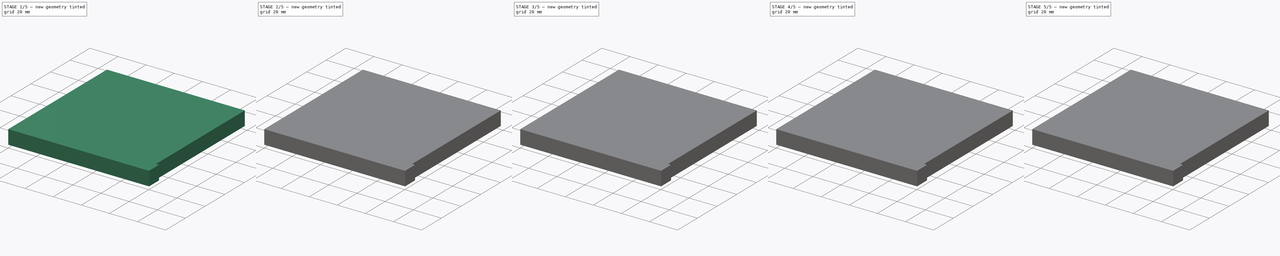
[diagram: build sequence overview — one tinted view per stage of 5, left to right]
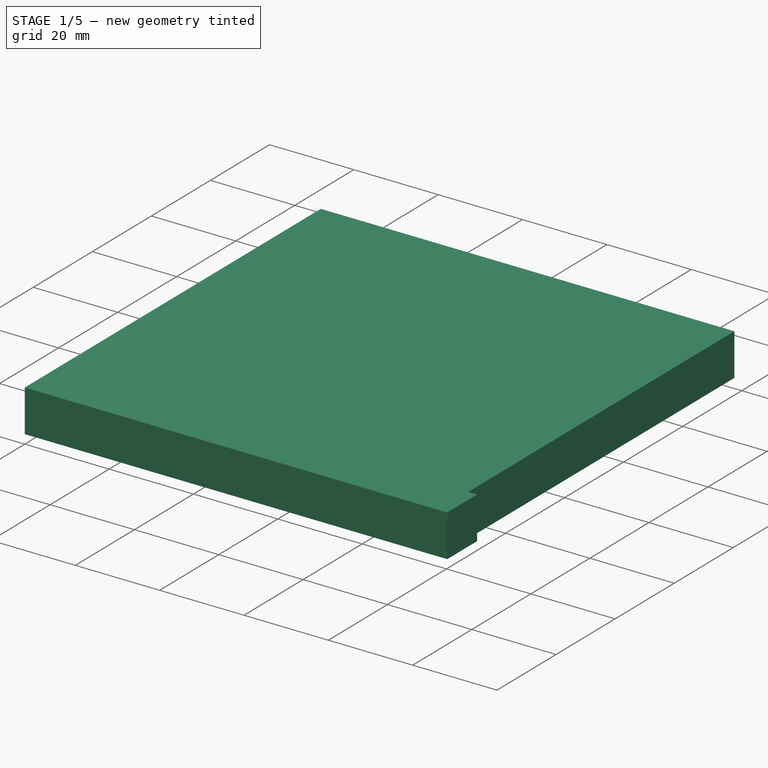
[diagram: stage 1 of 5 — iso view after this stage's code; geometry added in this stage tinted green]
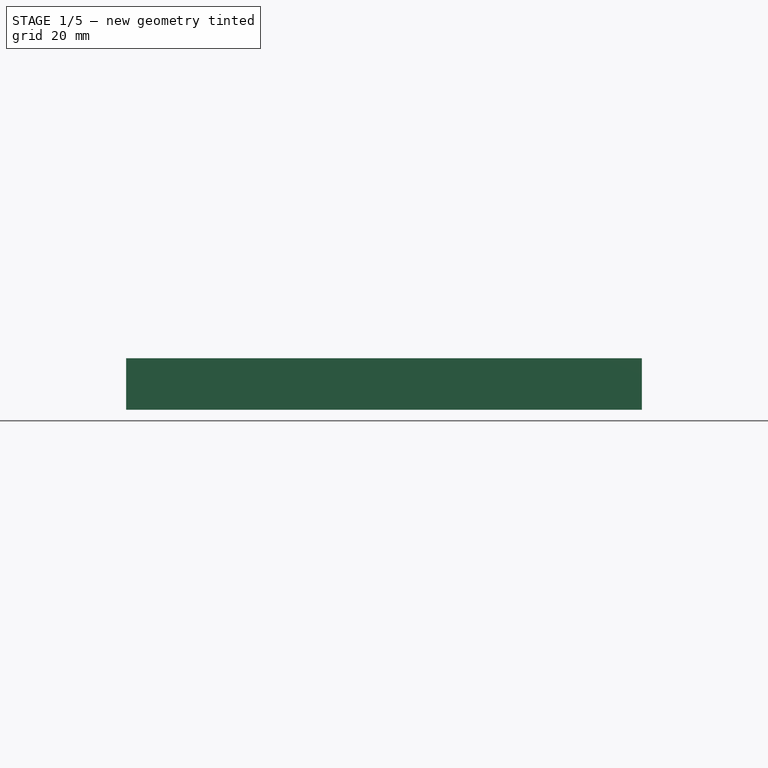
[diagram: stage 1 of 5 — front view after this stage's code; geometry added in this stage tinted green]
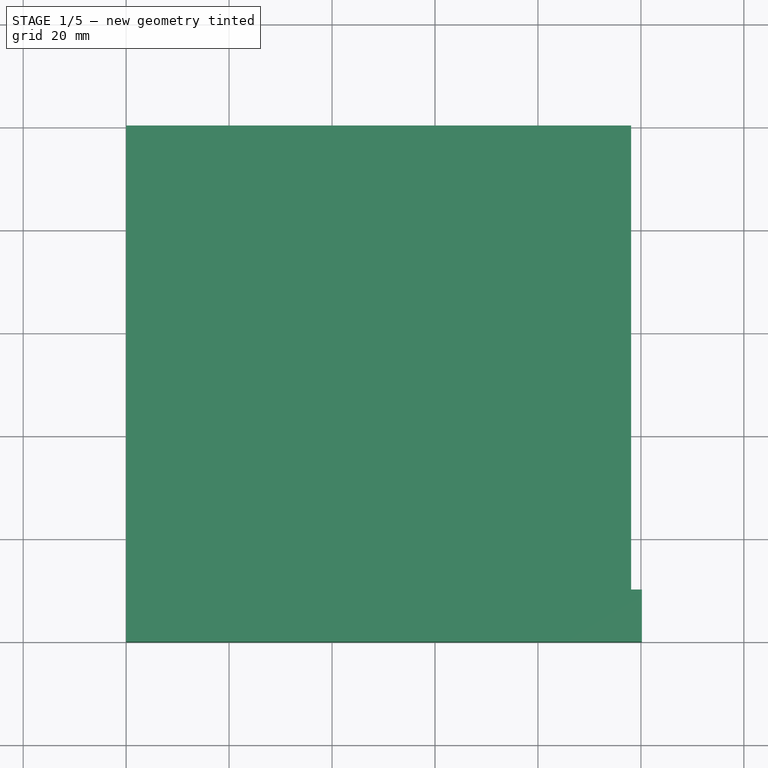
[diagram: stage 1 of 5 — top view after this stage's code; geometry added in this stage tinted green]
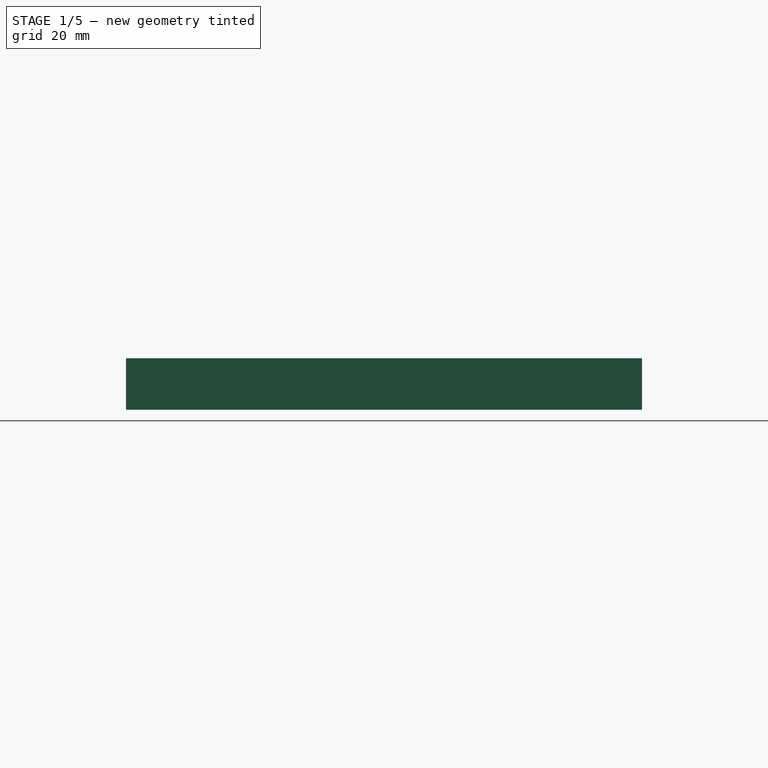
[diagram: stage 1 of 5 — right view after this stage's code; geometry added in this stage tinted green]
FCSTD DOCUMENT  (FreeCAD 0.19R)
Label: Model 00
License: All rights reserved
LicenseURL: http://en.wikipedia.org/wiki/All_rights_reserved
objects: Sketcher::SketchObject×15, PartDesign::Pad×15, PartDesign::Body×15
note: 60 computed .brp shape members not serialized (recipe doc carries the construction recipe); baked Part::Feature solids carry a one-line shape summary decoded from their .brp

FEATURE [PartDesign::Body] Body011
  Group = -> [Sketch011,Pad011]
  Origin = -> Origin011
  Placement = pos=(-54.7665,-44.7011,0) rot=(0,0,1;0rad)
  Tip = -> Pad011
FEATURE [Sketcher::SketchObject] Sketch012
  FullyConstrained = false
  MapMode = 5
  Support = -> [XY_Plane012]
  sketch-geometry (4):
    g0: LineSegment StartX=0 StartY=0 StartZ=0 EndX=29.9606 EndY=0 EndZ=0
    g1: LineSegment StartX=29.9606 StartY=0 StartZ=0 EndX=29.9606 EndY=30.0272 EndZ=0
    g2: LineSegment StartX=29.9606 StartY=30.0272 StartZ=0 EndX=0 EndY=30.0272 EndZ=0
    g3: LineSegment StartX=0 StartY=30.0272 StartZ=0 EndX=0 EndY=0 EndZ=0
  constraints (9):
    c: Coincident(g0,g1)
    c: Coincident(g1,g2)
    c: Coincident(g2,g3)
    c: Coincident(g3,g0)
    c: Horizontal(g0)
    c: Horizontal(g2)
    c: Vertical(g1)
    c: Vertical(g3)
    c: Coincident(g0,g-1)
FEATURE [PartDesign::Pad] Pad012
  Direction = (1,1,1)
  Length = 10
  Length2 = 100
  Profile = -> Sketch012
  Type = 0
FEATURE [PartDesign::Body] Body012
  Group = -> [Sketch012,Pad012]
  Origin = -> Origin012
  Placement = pos=(-29.9606,-30.0272,0) rot=(0,0,1;0rad)
  Tip = -> Pad012
FEATURE [Sketcher::SketchObject] Sketch013
  FullyConstrained = false
  MapMode = 5
  Support = -> [XY_Plane013]
  sketch-geometry (4):
    g0: LineSegment StartX=0 StartY=0 StartZ=0 EndX=100.186 EndY=0 EndZ=0
    g1: LineSegment StartX=100.186 StartY=0 StartZ=0 EndX=100.186 EndY=10.1126 EndZ=0
    g2: LineSegment StartX=100.186 StartY=10.1126 StartZ=0 EndX=0 EndY=10.1126 EndZ=0
    g3: LineSegment StartX=0 StartY=10.1126 StartZ=0 EndX=0 EndY=0 EndZ=0
  constraints (9):
    c: Coincident(g0,g1)
    c: Coincident(g1,g2)
    c: Coincident(g2,g3)
    c: Coincident(g3,g0)
    c: Horizontal(g0)
    c: Horizontal(g2)
    c: Vertical(g1)
    c: Vertical(g3)
    c: Coincident(g0,g-1)
FEATURE [PartDesign::Pad] Pad013
  Direction = (1,1,1)
  Length = 10
  Length2 = 100
  Profile = -> Sketch013
  Type = 0
FEATURE [PartDesign::Body] Body013
  Group = -> [Sketch013,Pad013]
  Origin = -> Origin013
  Placement = pos=(-100.186,-10.1126,0) rot=(0,0,1;0rad)
  Tip = -> Pad013
FEATURE [Sketcher::SketchObject] Sketch014
  FullyConstrained = false
  MapMode = 5
  Support = -> [XY_Plane014]
  sketch-geometry (4):
    g0: LineSegment StartX=0 StartY=0 StartZ=0 EndX=98.0894 EndY=0 EndZ=0
    g1: LineSegment StartX=98.0894 StartY=0 StartZ=0 EndX=98.0894 EndY=100.252 EndZ=0
    g2: LineSegment StartX=98.0894 StartY=100.252 StartZ=0 EndX=0 EndY=100.252 EndZ=0
    g3: LineSegment StartX=0 StartY=100.252 StartZ=0 EndX=0 EndY=0 EndZ=0
  constraints (9):
    c: Coincident(g0,g1)
    c: Coincident(g1,g2)
    c: Coincident(g2,g3)
    c: Coincident(g3,g0)
    c: Horizontal(g0)
    c: Horizontal(g2)
    c: Vertical(g1)
    c: Vertical(g3)
    c: Coincident(g0,g-1)
FEATURE [PartDesign::Pad] Pad014
  Direction = (1,1,1)
  Length = 10
  Length2 = 100
  Profile = -> Sketch014
  Type = 0
FEATURE [PartDesign::Body] Body014
  Group = -> [Sketch014,Pad014]
  Origin = -> Origin014
  Placement = pos=(-98.0894,-100.252,0) rot=(0,0,1;0rad)
  Tip = -> Pad014
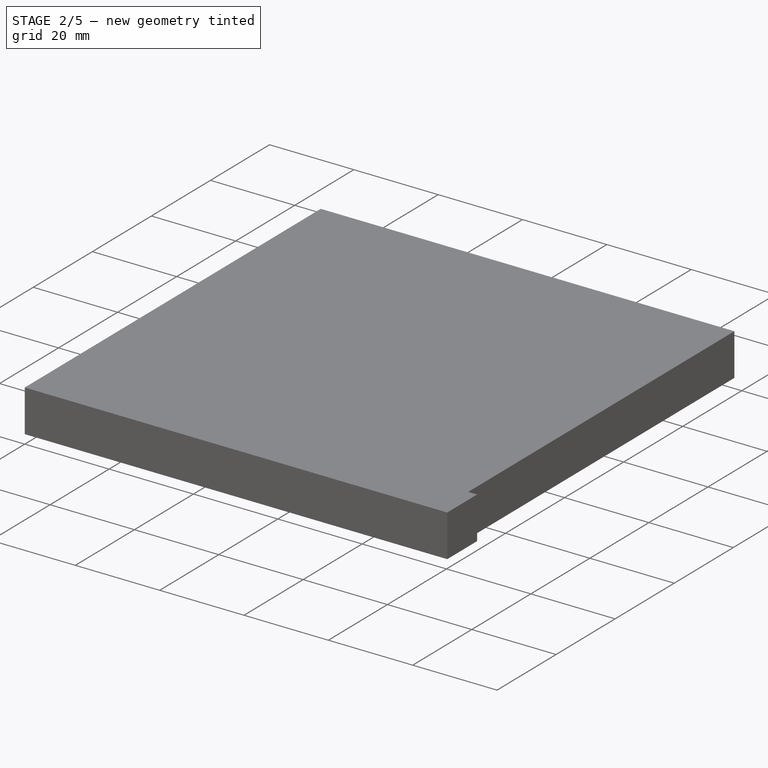
[diagram: stage 2 of 5 — iso view after this stage's code; geometry added in this stage tinted green]
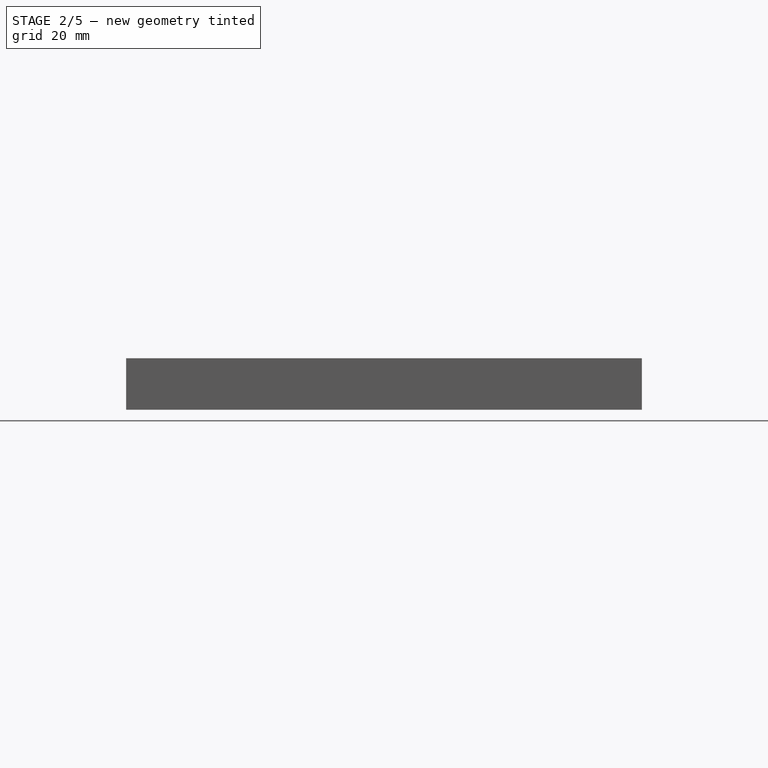
[diagram: stage 2 of 5 — front view after this stage's code; geometry added in this stage tinted green]
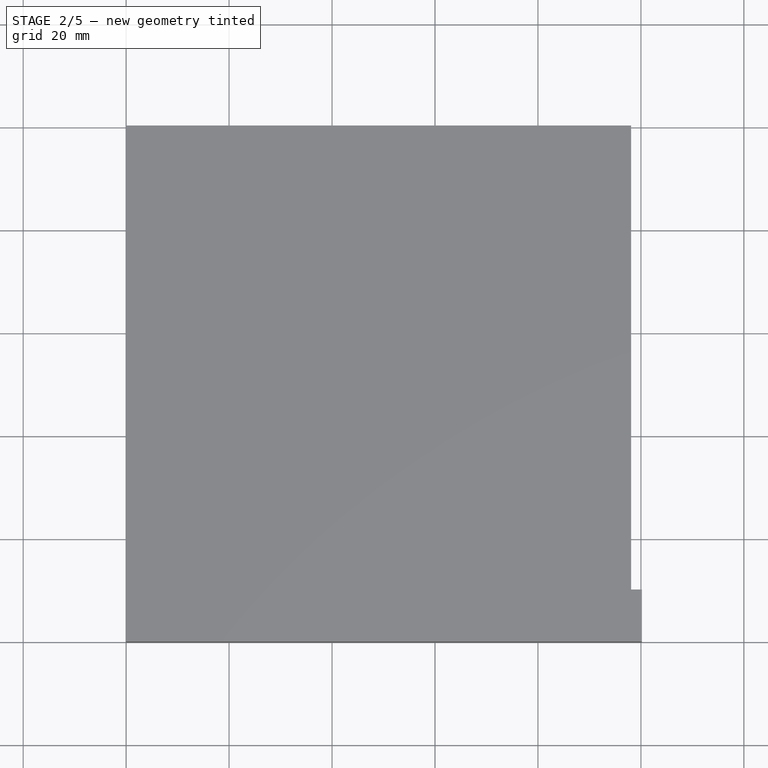
[diagram: stage 2 of 5 — top view after this stage's code; geometry added in this stage tinted green]
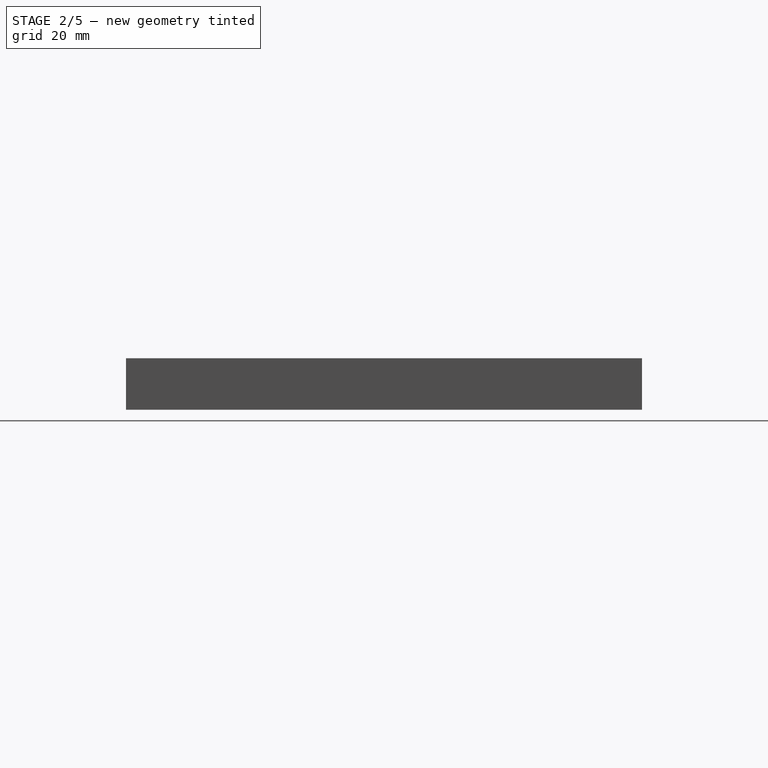
[diagram: stage 2 of 5 — right view after this stage's code; geometry added in this stage tinted green]
FEATURE [PartDesign::Body] Body008
  Group = -> [Sketch008,Pad008]
  Origin = -> Origin008
  Placement = pos=(-50.9233,-49.5924,0) rot=(0,0,1;0rad)
  Tip = -> Pad008
FEATURE [Sketcher::SketchObject] Sketch009
  FullyConstrained = false
  MapMode = 5
  Support = -> [XY_Plane009]
  sketch-geometry (4):
    g0: LineSegment StartX=0 StartY=0 StartZ=0 EndX=29.9606 EndY=0 EndZ=0
    g1: LineSegment StartX=29.9606 StartY=0 StartZ=0 EndX=29.9606 EndY=30.0272 EndZ=0
    g2: LineSegment StartX=29.9606 StartY=30.0272 StartZ=0 EndX=0 EndY=30.0272 EndZ=0
    g3: LineSegment StartX=0 StartY=30.0272 StartZ=0 EndX=0 EndY=0 EndZ=0
  constraints (9):
    c: Coincident(g0,g1)
    c: Coincident(g1,g2)
    c: Coincident(g2,g3)
    c: Coincident(g3,g0)
    c: Horizontal(g0)
    c: Horizontal(g2)
    c: Vertical(g1)
    c: Vertical(g3)
    c: Coincident(g0,g-1)
FEATURE [PartDesign::Pad] Pad009
  Direction = (1,1,1)
  Length = 10
  Length2 = 100
  Profile = -> Sketch009
  Type = 0
FEATURE [PartDesign::Body] Body009
  Group = -> [Sketch009,Pad009]
  Origin = -> Origin009
  Placement = pos=(-29.9606,-30.0272,0) rot=(0,0,1;0rad)
  Tip = -> Pad009
FEATURE [Sketcher::SketchObject] Sketch010
  FullyConstrained = false
  MapMode = 5
  Support = -> [XY_Plane010]
  sketch-geometry (4):
    g0: LineSegment StartX=0 StartY=0 StartZ=0 EndX=49.8752 EndY=0 EndZ=0
    g1: LineSegment StartX=49.8752 StartY=0 StartZ=0 EndX=49.8752 EndY=40.1592 EndZ=0
    g2: LineSegment StartX=49.8752 StartY=40.1592 StartZ=0 EndX=0 EndY=40.1592 EndZ=0
    g3: LineSegment StartX=0 StartY=40.1592 StartZ=0 EndX=0 EndY=0 EndZ=0
  constraints (9):
    c: Coincident(g0,g1)
    c: Coincident(g1,g2)
    c: Coincident(g2,g3)
    c: Coincident(g3,g0)
    c: Horizontal(g0)
    c: Horizontal(g2)
    c: Vertical(g1)
    c: Vertical(g3)
    c: Coincident(g0,g-1)
FEATURE [PartDesign::Pad] Pad010
  Direction = (1,1,1)
  Length = 10
  Length2 = 100
  Profile = -> Sketch010
  Type = 0
FEATURE [PartDesign::Body] Body010
  Group = -> [Sketch010,Pad010]
  Origin = -> Origin010
  Placement = pos=(-49.8752,-40.1592,0) rot=(0,0,1;0rad)
  Tip = -> Pad010
FEATURE [Sketcher::SketchObject] Sketch011
  FullyConstrained = false
  MapMode = 5
  Support = -> [XY_Plane011]
  sketch-geometry (4):
    g0: LineSegment StartX=0 StartY=0 StartZ=0 EndX=54.7665 EndY=0 EndZ=0
    g1: LineSegment StartX=54.7665 StartY=0 StartZ=0 EndX=54.7665 EndY=44.7011 EndZ=0
    g2: LineSegment StartX=54.7665 StartY=44.7011 StartZ=0 EndX=0 EndY=44.7011 EndZ=0
    g3: LineSegment StartX=0 StartY=44.7011 StartZ=0 EndX=0 EndY=0 EndZ=0
  constraints (9):
    c: Coincident(g0,g1)
    c: Coincident(g1,g2)
    c: Coincident(g2,g3)
    c: Coincident(g3,g0)
    c: Horizontal(g0)
    c: Horizontal(g2)
    c: Vertical(g1)
    c: Vertical(g3)
    c: Coincident(g0,g-1)
FEATURE [PartDesign::Pad] Pad011
  Direction = (1,1,1)
  Length = 10
  Length2 = 100
  Profile = -> Sketch011
  Type = 0
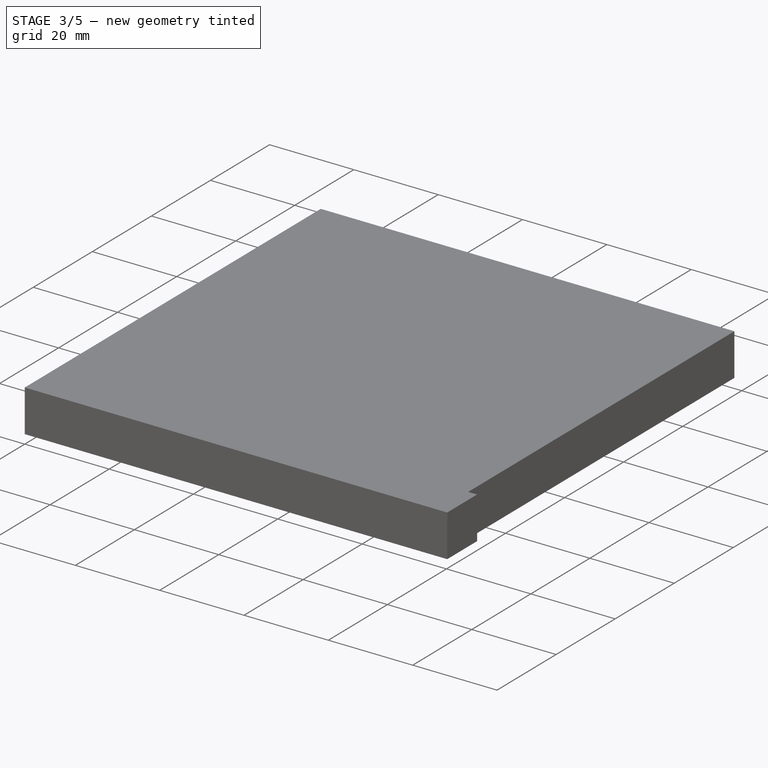
[diagram: stage 3 of 5 — iso view after this stage's code; geometry added in this stage tinted green]
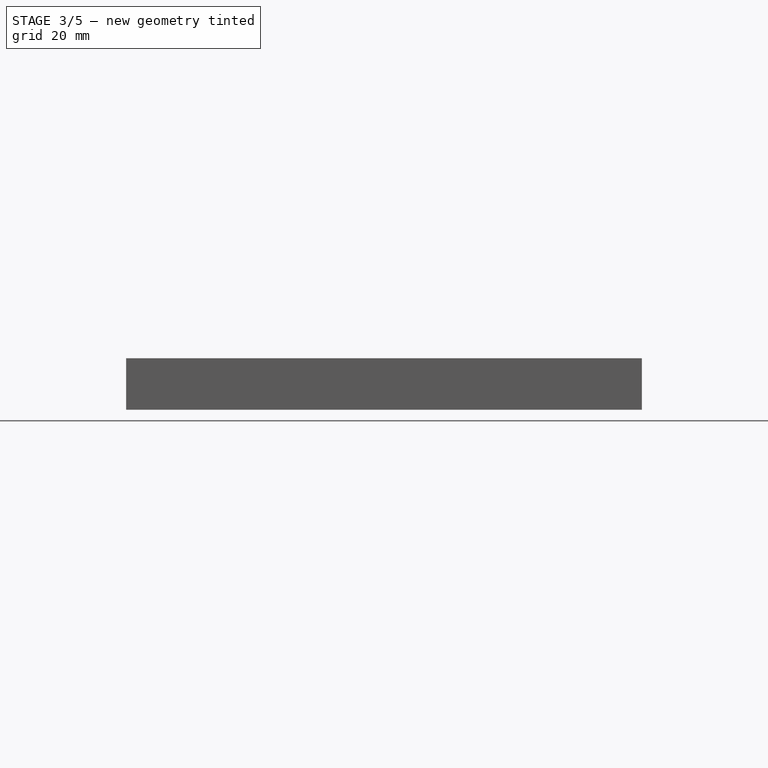
[diagram: stage 3 of 5 — front view after this stage's code; geometry added in this stage tinted green]
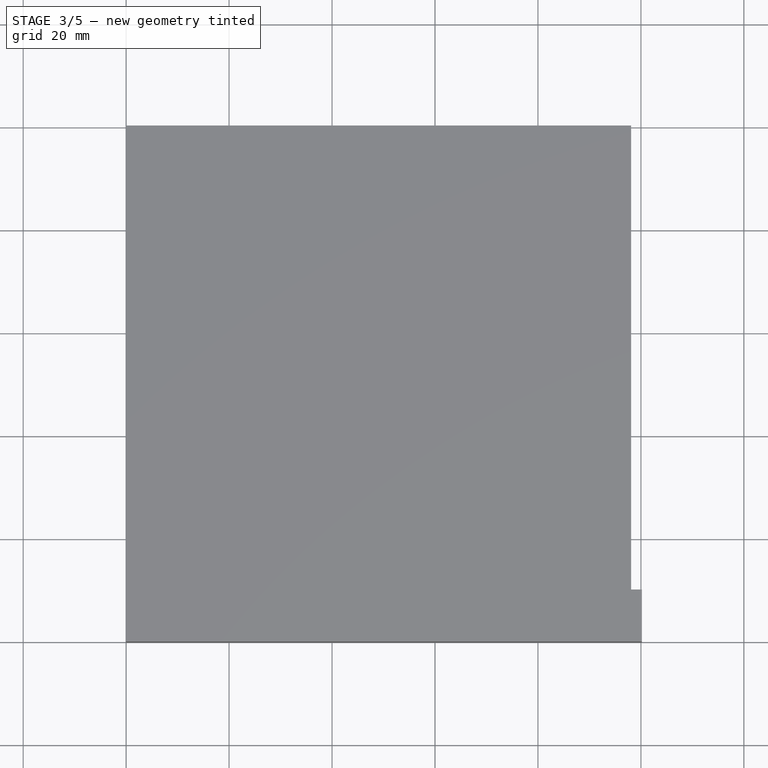
[diagram: stage 3 of 5 — top view after this stage's code; geometry added in this stage tinted green]
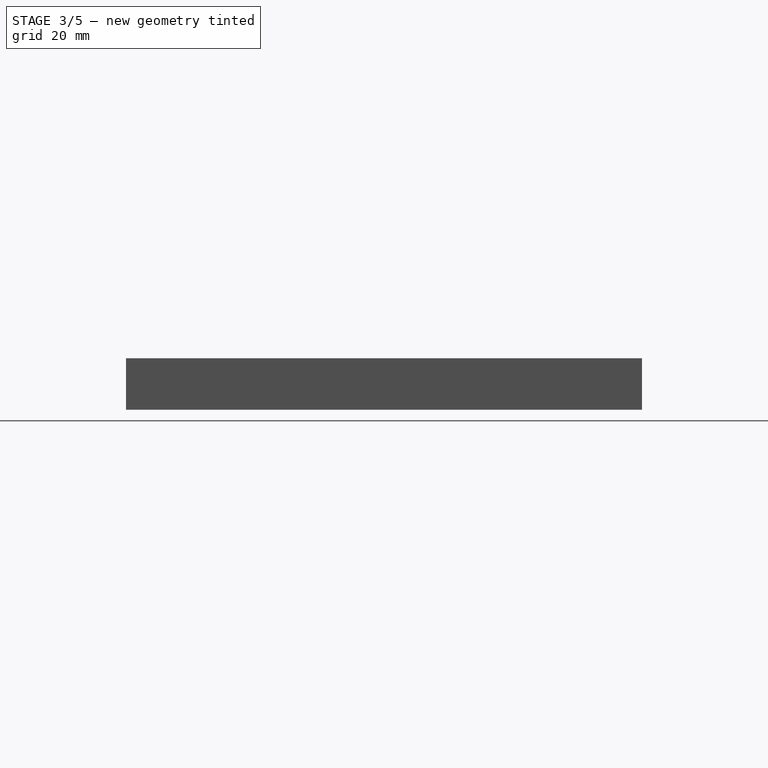
[diagram: stage 3 of 5 — right view after this stage's code; geometry added in this stage tinted green]
FEATURE [PartDesign::Body] Body005
  Group = -> [Sketch005,Pad005]
  Origin = -> Origin005
  Placement = pos=(-100.186,-10.1126,0) rot=(0,0,1;0rad)
  Tip = -> Pad005
FEATURE [Sketcher::SketchObject] Sketch006
  FullyConstrained = false
  MapMode = 5
  Support = -> [XY_Plane006]
  sketch-geometry (4):
    g0: LineSegment StartX=0 StartY=0 StartZ=0 EndX=49.8752 EndY=0 EndZ=0
    g1: LineSegment StartX=49.8752 StartY=0 StartZ=0 EndX=49.8752 EndY=40.1592 EndZ=0
    g2: LineSegment StartX=49.8752 StartY=40.1592 StartZ=0 EndX=0 EndY=40.1592 EndZ=0
    g3: LineSegment StartX=0 StartY=40.1592 StartZ=0 EndX=0 EndY=0 EndZ=0
  constraints (9):
    c: Coincident(g0,g1)
    c: Coincident(g1,g2)
    c: Coincident(g2,g3)
    c: Coincident(g3,g0)
    c: Horizontal(g0)
    c: Horizontal(g2)
    c: Vertical(g1)
    c: Vertical(g3)
    c: Coincident(g0,g-1)
FEATURE [PartDesign::Pad] Pad006
  Direction = (1,1,1)
  Length = 10
  Length2 = 100
  Profile = -> Sketch006
  Type = 0
FEATURE [PartDesign::Body] Body006
  Group = -> [Sketch006,Pad006]
  Origin = -> Origin006
  Placement = pos=(-49.8752,-40.1592,0) rot=(0,0,1;0rad)
  Tip = -> Pad006
FEATURE [Sketcher::SketchObject] Sketch007
  FullyConstrained = false
  MapMode = 5
  Support = -> [XY_Plane007]
  sketch-geometry (4):
    g0: LineSegment StartX=0 StartY=0 StartZ=0 EndX=98.0894 EndY=0 EndZ=0
    g1: LineSegment StartX=98.0894 StartY=0 StartZ=0 EndX=98.0894 EndY=100.252 EndZ=0
    g2: LineSegment StartX=98.0894 StartY=100.252 StartZ=0 EndX=0 EndY=100.252 EndZ=0
    g3: LineSegment StartX=0 StartY=100.252 StartZ=0 EndX=0 EndY=0 EndZ=0
  constraints (9):
    c: Coincident(g0,g1)
    c: Coincident(g1,g2)
    c: Coincident(g2,g3)
    c: Coincident(g3,g0)
    c: Horizontal(g0)
    c: Horizontal(g2)
    c: Vertical(g1)
    c: Vertical(g3)
    c: Coincident(g0,g-1)
FEATURE [PartDesign::Pad] Pad007
  Direction = (1,1,1)
  Length = 10
  Length2 = 100
  Profile = -> Sketch007
  Type = 0
FEATURE [PartDesign::Body] Body007
  Group = -> [Sketch007,Pad007]
  Origin = -> Origin007
  Placement = pos=(-98.0894,-100.252,0) rot=(0,0,1;0rad)
  Tip = -> Pad007
FEATURE [Sketcher::SketchObject] Sketch008
  FullyConstrained = false
  MapMode = 5
  Support = -> [XY_Plane008]
  sketch-geometry (4):
    g0: LineSegment StartX=0 StartY=0 StartZ=0 EndX=50.9233 EndY=0 EndZ=0
    g1: LineSegment StartX=50.9233 StartY=0 StartZ=0 EndX=50.9233 EndY=49.5924 EndZ=0
    g2: LineSegment StartX=50.9233 StartY=49.5924 StartZ=0 EndX=0 EndY=49.5924 EndZ=0
    g3: LineSegment StartX=0 StartY=49.5924 StartZ=0 EndX=0 EndY=0 EndZ=0
  constraints (9):
    c: Coincident(g0,g1)
    c: Coincident(g1,g2)
    c: Coincident(g2,g3)
    c: Coincident(g3,g0)
    c: Horizontal(g0)
    c: Horizontal(g2)
    c: Vertical(g1)
    c: Vertical(g3)
    c: Coincident(g0,g-1)
FEATURE [PartDesign::Pad] Pad008
  Direction = (1,1,1)
  Length = 10
  Length2 = 100
  Profile = -> Sketch008
  Type = 0
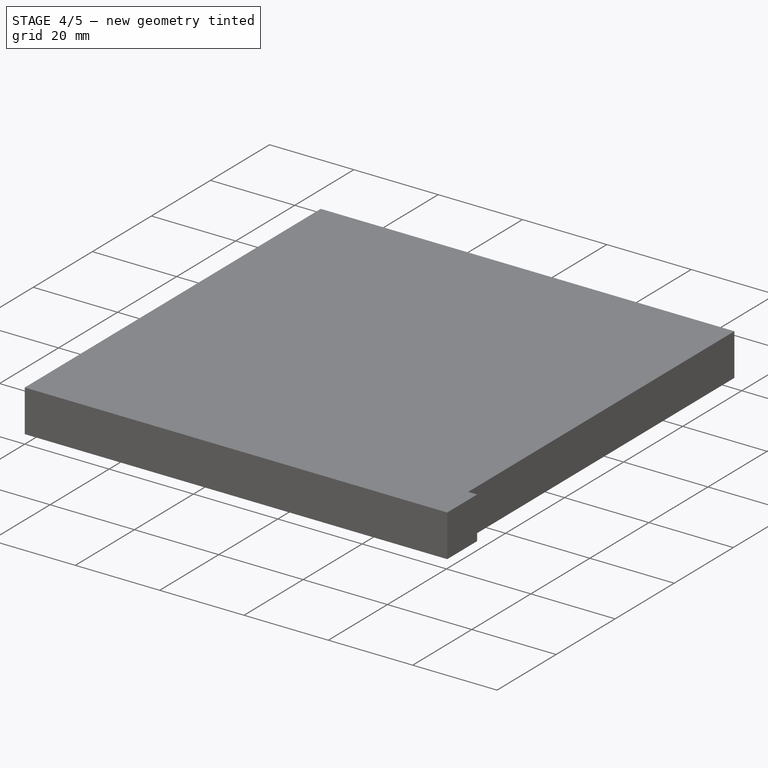
[diagram: stage 4 of 5 — iso view after this stage's code; geometry added in this stage tinted green]
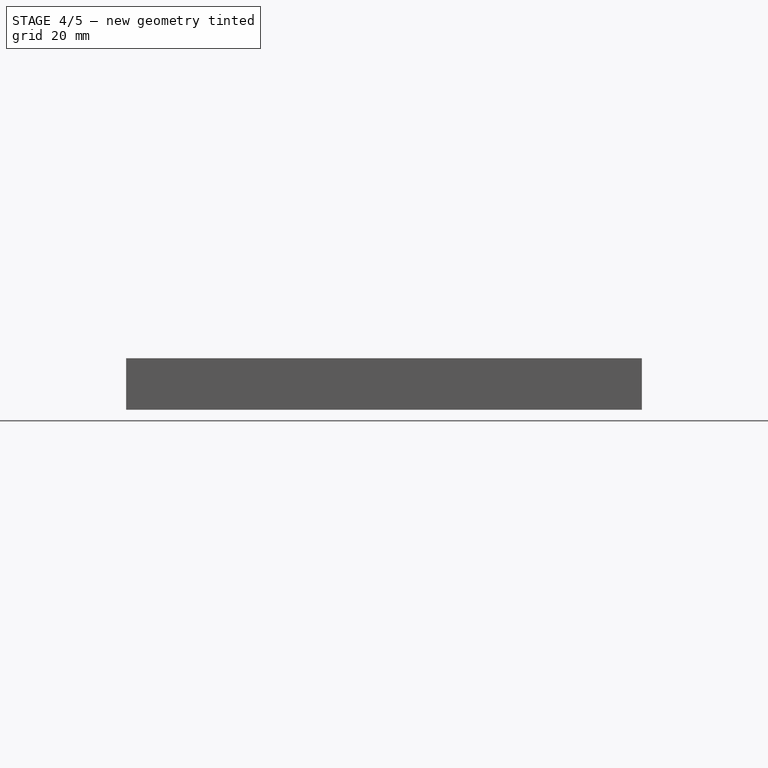
[diagram: stage 4 of 5 — front view after this stage's code; geometry added in this stage tinted green]
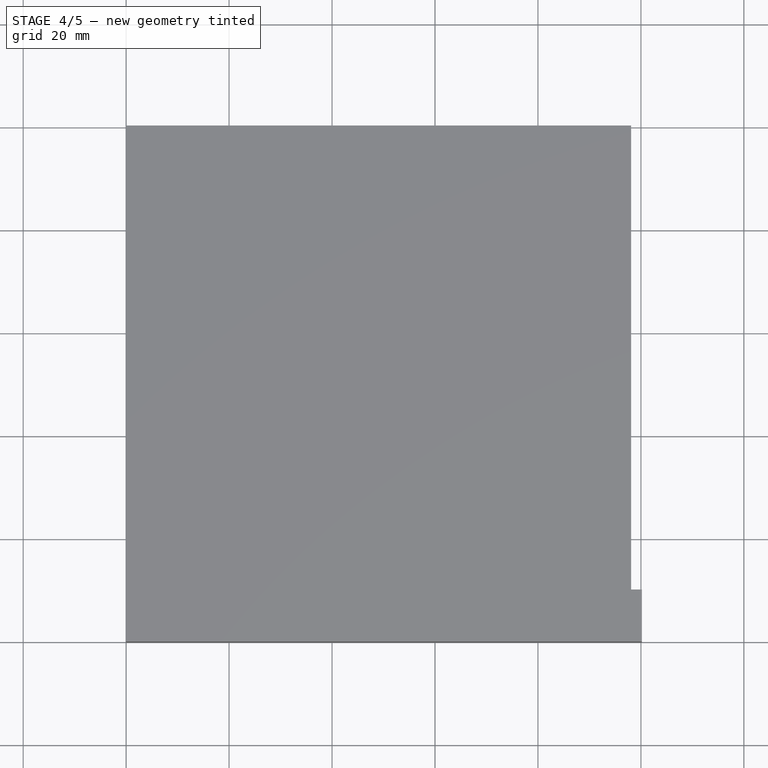
[diagram: stage 4 of 5 — top view after this stage's code; geometry added in this stage tinted green]
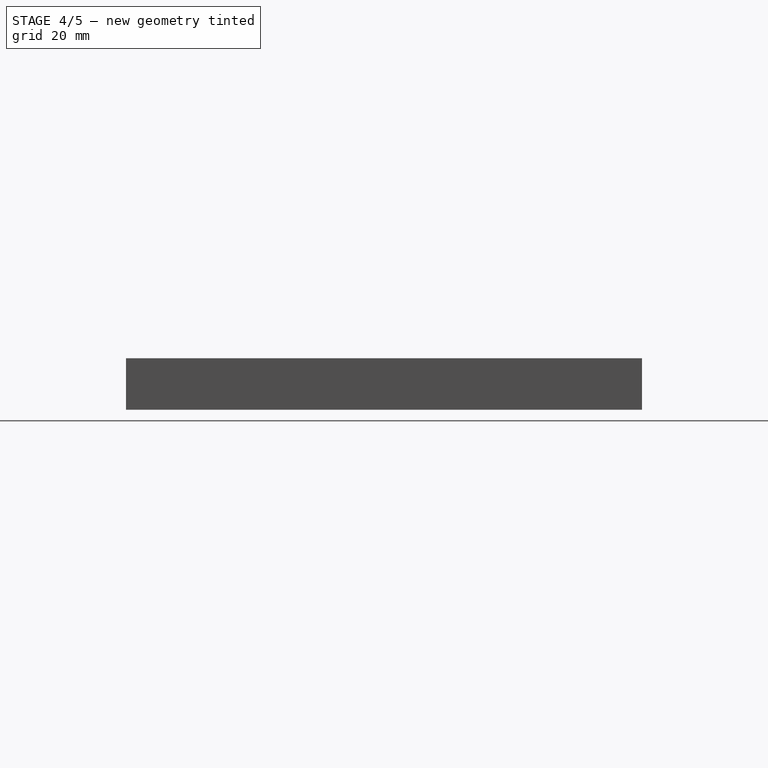
[diagram: stage 4 of 5 — right view after this stage's code; geometry added in this stage tinted green]
FEATURE [PartDesign::Body] Body002
  Group = -> [Sketch002,Pad002]
  Origin = -> Origin002
  Placement = pos=(-29.9606,-30.0272,0) rot=(0,0,1;0rad)
  Tip = -> Pad002
FEATURE [Sketcher::SketchObject] Sketch003
  FullyConstrained = false
  MapMode = 5
  Support = -> [XY_Plane003]
  sketch-geometry (4):
    g0: LineSegment StartX=0 StartY=0 StartZ=0 EndX=54.7665 EndY=0 EndZ=0
    g1: LineSegment StartX=54.7665 StartY=0 StartZ=0 EndX=54.7665 EndY=44.7011 EndZ=0
    g2: LineSegment StartX=54.7665 StartY=44.7011 StartZ=0 EndX=0 EndY=44.7011 EndZ=0
    g3: LineSegment StartX=0 StartY=44.7011 StartZ=0 EndX=0 EndY=0 EndZ=0
  constraints (9):
    c: Coincident(g0,g1)
    c: Coincident(g1,g2)
    c: Coincident(g2,g3)
    c: Coincident(g3,g0)
    c: Horizontal(g0)
    c: Horizontal(g2)
    c: Vertical(g1)
    c: Vertical(g3)
    c: Coincident(g0,g-1)
FEATURE [PartDesign::Pad] Pad003
  Direction = (1,1,1)
  Length = 10
  Length2 = 100
  Profile = -> Sketch003
  Type = 0
FEATURE [PartDesign::Body] Body003
  Group = -> [Sketch003,Pad003]
  Origin = -> Origin003
  Placement = pos=(-54.7665,-44.7011,0) rot=(0,0,1;0rad)
  Tip = -> Pad003
FEATURE [Sketcher::SketchObject] Sketch004
  FullyConstrained = false
  MapMode = 5
  Support = -> [XY_Plane004]
  sketch-geometry (4):
    g0: LineSegment StartX=0 StartY=0 StartZ=0 EndX=42.1888 EndY=0 EndZ=0
    g1: LineSegment StartX=42.1888 StartY=0 StartZ=0 EndX=42.1888 EndY=78.2414 EndZ=0
    g2: LineSegment StartX=42.1888 StartY=78.2414 StartZ=0 EndX=0 EndY=78.2414 EndZ=0
    g3: LineSegment StartX=0 StartY=78.2414 StartZ=0 EndX=0 EndY=0 EndZ=0
  constraints (9):
    c: Coincident(g0,g1)
    c: Coincident(g1,g2)
    c: Coincident(g2,g3)
    c: Coincident(g3,g0)
    c: Horizontal(g0)
    c: Horizontal(g2)
    c: Vertical(g1)
    c: Vertical(g3)
    c: Coincident(g0,g-1)
FEATURE [PartDesign::Pad] Pad004
  Direction = (1,1,1)
  Length = 10
  Length2 = 100
  Profile = -> Sketch004
  Type = 0
FEATURE [PartDesign::Body] Body004
  Group = -> [Sketch004,Pad004]
  Origin = -> Origin004
  Placement = pos=(-42.1888,-78.2414,0) rot=(0,0,1;0rad)
  Tip = -> Pad004
FEATURE [Sketcher::SketchObject] Sketch005
  FullyConstrained = false
  MapMode = 5
  Support = -> [XY_Plane005]
  sketch-geometry (4):
    g0: LineSegment StartX=0 StartY=0 StartZ=0 EndX=100.186 EndY=0 EndZ=0
    g1: LineSegment StartX=100.186 StartY=0 StartZ=0 EndX=100.186 EndY=10.1126 EndZ=0
    g2: LineSegment StartX=100.186 StartY=10.1126 StartZ=0 EndX=0 EndY=10.1126 EndZ=0
    g3: LineSegment StartX=0 StartY=10.1126 StartZ=0 EndX=0 EndY=0 EndZ=0
  constraints (9):
    c: Coincident(g0,g1)
    c: Coincident(g1,g2)
    c: Coincident(g2,g3)
    c: Coincident(g3,g0)
    c: Horizontal(g0)
    c: Horizontal(g2)
    c: Vertical(g1)
    c: Vertical(g3)
    c: Coincident(g0,g-1)
FEATURE [PartDesign::Pad] Pad005
  Direction = (1,1,1)
  Length = 10
  Length2 = 100
  Profile = -> Sketch005
  Type = 0
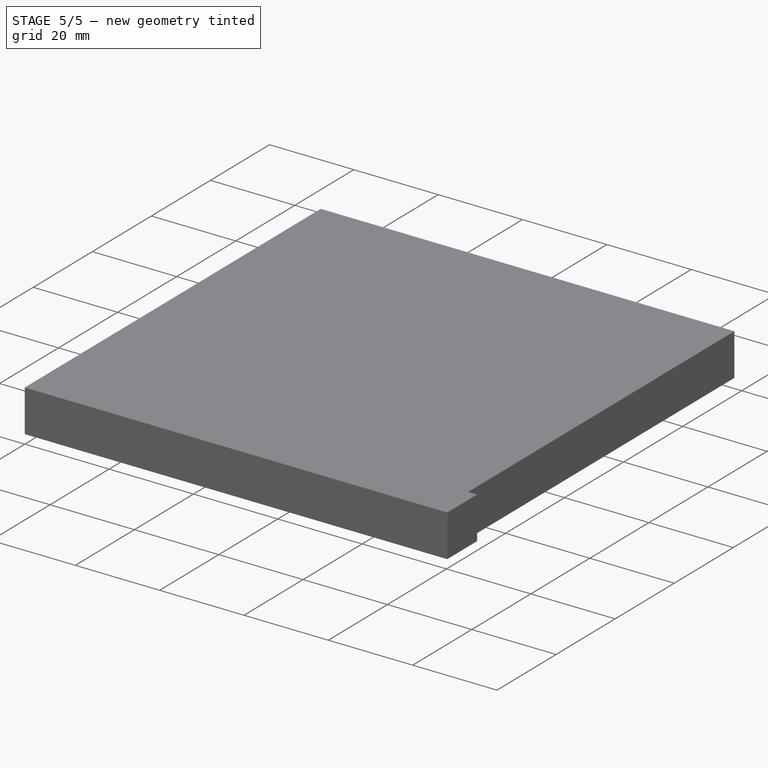
[diagram: stage 5 of 5 — iso view after this stage's code; geometry added in this stage tinted green]
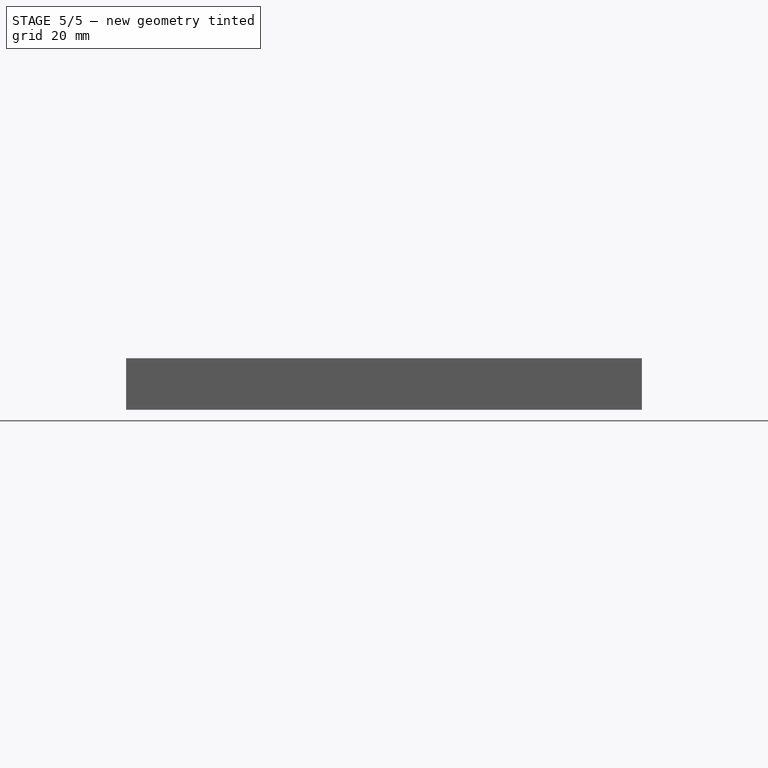
[diagram: stage 5 of 5 — front view after this stage's code; geometry added in this stage tinted green]
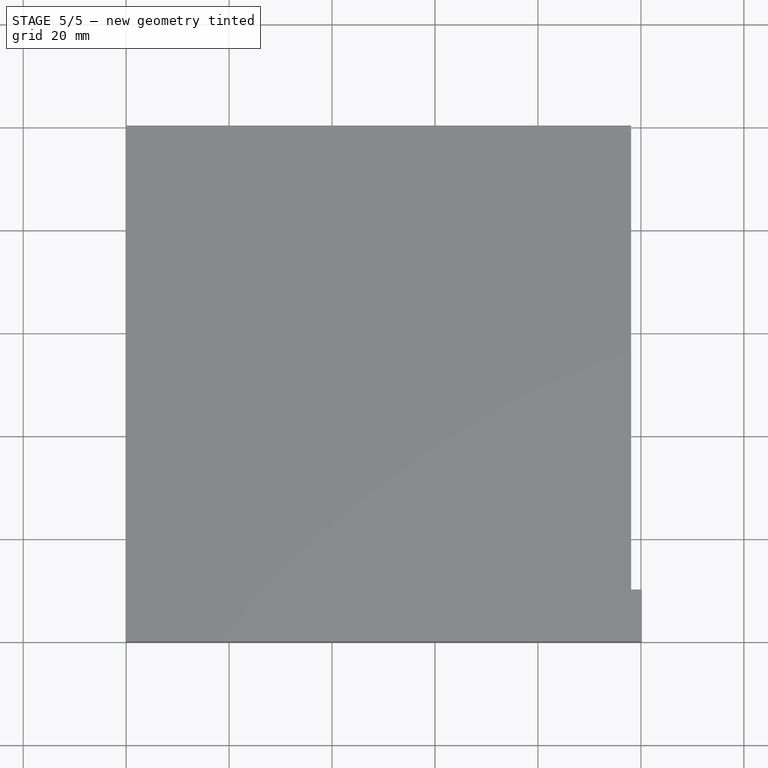
[diagram: stage 5 of 5 — top view after this stage's code; geometry added in this stage tinted green]
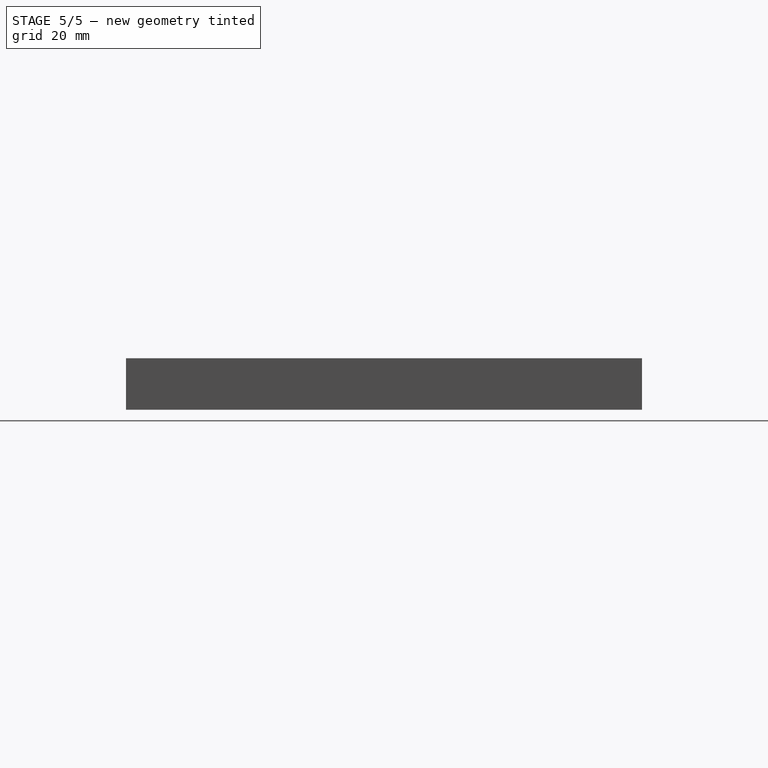
[diagram: stage 5 of 5 — right view after this stage's code; geometry added in this stage tinted green]
FEATURE [Sketcher::SketchObject] Sketch
  FullyConstrained = false
  MapMode = 5
  Support = -> [XY_Plane]
  sketch-geometry (4):
    g0: LineSegment StartX=0 StartY=0 StartZ=0 EndX=34.9294 EndY=0 EndZ=0
    g1: LineSegment StartX=34.9294 StartY=0 StartZ=0 EndX=34.9294 EndY=20.4867 EndZ=0
    g2: LineSegment StartX=34.9294 StartY=20.4867 StartZ=0 EndX=0 EndY=20.4867 EndZ=0
    g3: LineSegment StartX=0 StartY=20.4867 StartZ=0 EndX=0 EndY=0 EndZ=0
  constraints (9):
    c: Coincident(g0,g1)
    c: Coincident(g1,g2)
    c: Coincident(g2,g3)
    c: Coincident(g3,g0)
    c: Horizontal(g0)
    c: Horizontal(g2)
    c: Vertical(g1)
    c: Vertical(g3)
    c: Coincident(g0,g-1)
FEATURE [PartDesign::Pad] Pad
  Direction = (1,1,1)
  Length = 10
  Length2 = 100
  Profile = -> Sketch
  Type = 0
FEATURE [PartDesign::Body] Body
  Group = -> [Sketch,Pad]
  Origin = -> Origin
  Placement = pos=(-34.9294,-20.4867,0) rot=(0,0,1;0rad)
  Tip = -> Pad
FEATURE [Sketcher::SketchObject] Sketch001
  FullyConstrained = false
  MapMode = 5
  Support = -> [XY_Plane001]
  sketch-geometry (4):
    g0: LineSegment StartX=0 StartY=0 StartZ=0 EndX=20.0157 EndY=0 EndZ=0
    g1: LineSegment StartX=20.0157 StartY=0 StartZ=0 EndX=20.0157 EndY=44.9765 EndZ=0
    g2: LineSegment StartX=20.0157 StartY=44.9765 StartZ=0 EndX=0 EndY=44.9765 EndZ=0
    g3: LineSegment StartX=0 StartY=44.9765 StartZ=0 EndX=0 EndY=0 EndZ=0
  constraints (9):
    c: Coincident(g0,g1)
    c: Coincident(g1,g2)
    c: Coincident(g2,g3)
    c: Coincident(g3,g0)
    c: Horizontal(g0)
    c: Horizontal(g2)
    c: Vertical(g1)
    c: Vertical(g3)
    c: Coincident(g0,g-1)
FEATURE [PartDesign::Pad] Pad001
  Direction = (1,1,1)
  Length = 10
  Length2 = 100
  Profile = -> Sketch001
  Type = 0
FEATURE [PartDesign::Body] Body001
  Group = -> [Sketch001,Pad001]
  Origin = -> Origin001
  Placement = pos=(-20.0157,-44.9765,0) rot=(0,0,1;0rad)
  Tip = -> Pad001
FEATURE [Sketcher::SketchObject] Sketch002
  FullyConstrained = false
  MapMode = 5
  Support = -> [XY_Plane002]
  sketch-geometry (4):
    g0: LineSegment StartX=0 StartY=0 StartZ=0 EndX=29.9606 EndY=0 EndZ=0
    g1: LineSegment StartX=29.9606 StartY=0 StartZ=0 EndX=29.9606 EndY=30.0272 EndZ=0
    g2: LineSegment StartX=29.9606 StartY=30.0272 StartZ=0 EndX=0 EndY=30.0272 EndZ=0
    g3: LineSegment StartX=0 StartY=30.0272 StartZ=0 EndX=0 EndY=0 EndZ=0
  constraints (9):
    c: Coincident(g0,g1)
    c: Coincident(g1,g2)
    c: Coincident(g2,g3)
    c: Coincident(g3,g0)
    c: Horizontal(g0)
    c: Horizontal(g2)
    c: Vertical(g1)
    c: Vertical(g3)
    c: Coincident(g0,g-1)
FEATURE [PartDesign::Pad] Pad002
  Direction = (1,1,1)
  Length = 10
  Length2 = 100
  Profile = -> Sketch002
  Type = 0
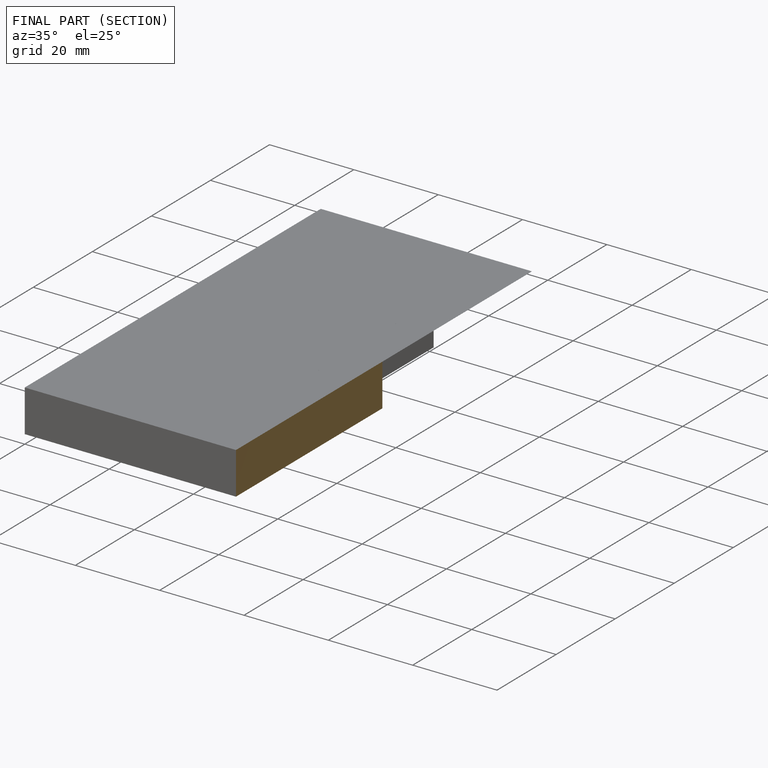
[diagram: finished part — half-section view (interior)]
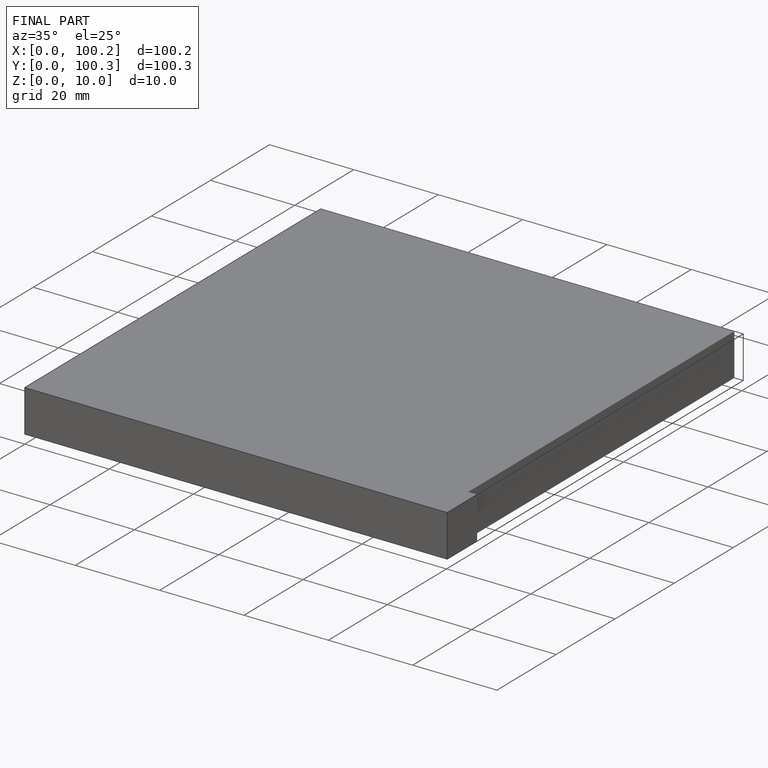
[diagram: finished part — iso view with bounding-box wireframe]
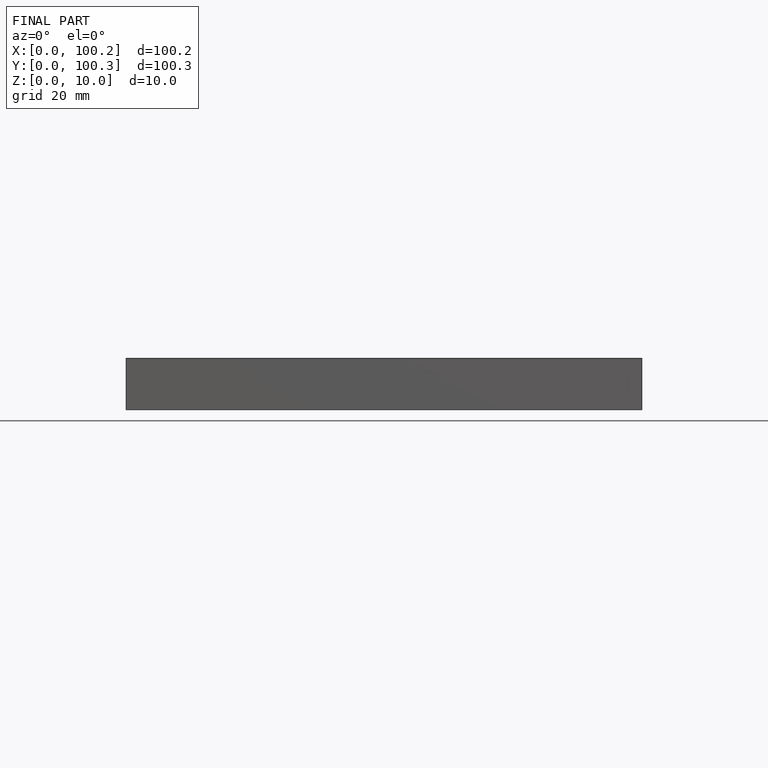
[diagram: finished part — front view with bounding-box wireframe]
